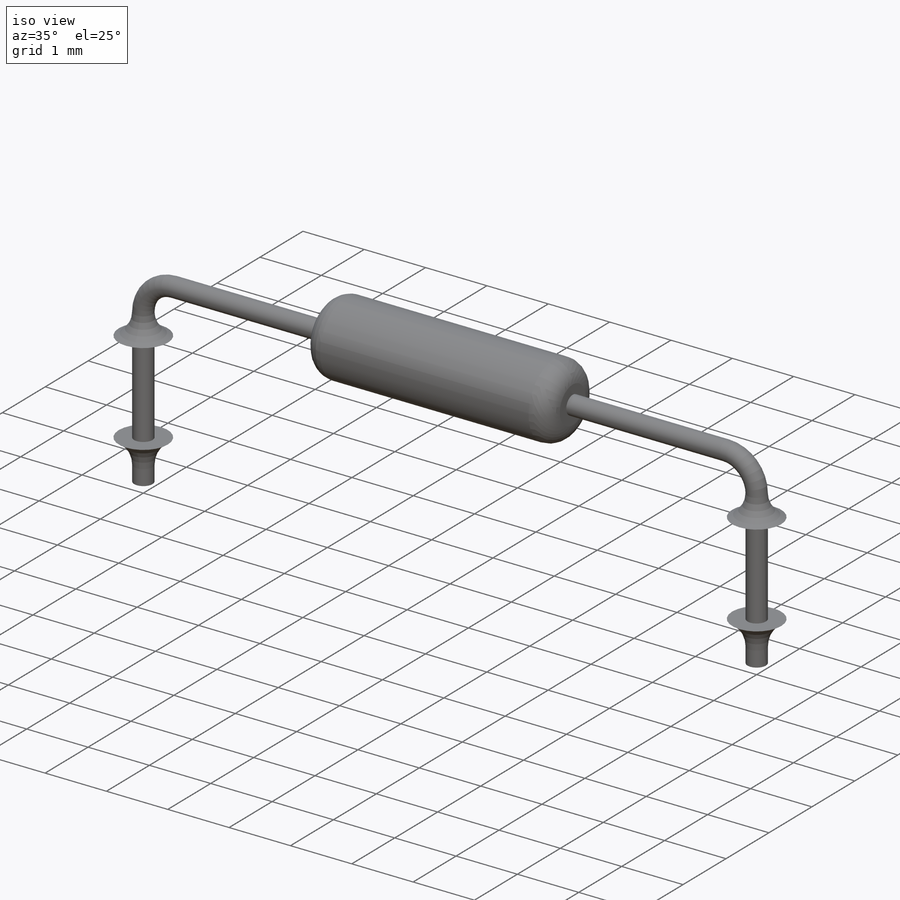
[diagram: iso view]
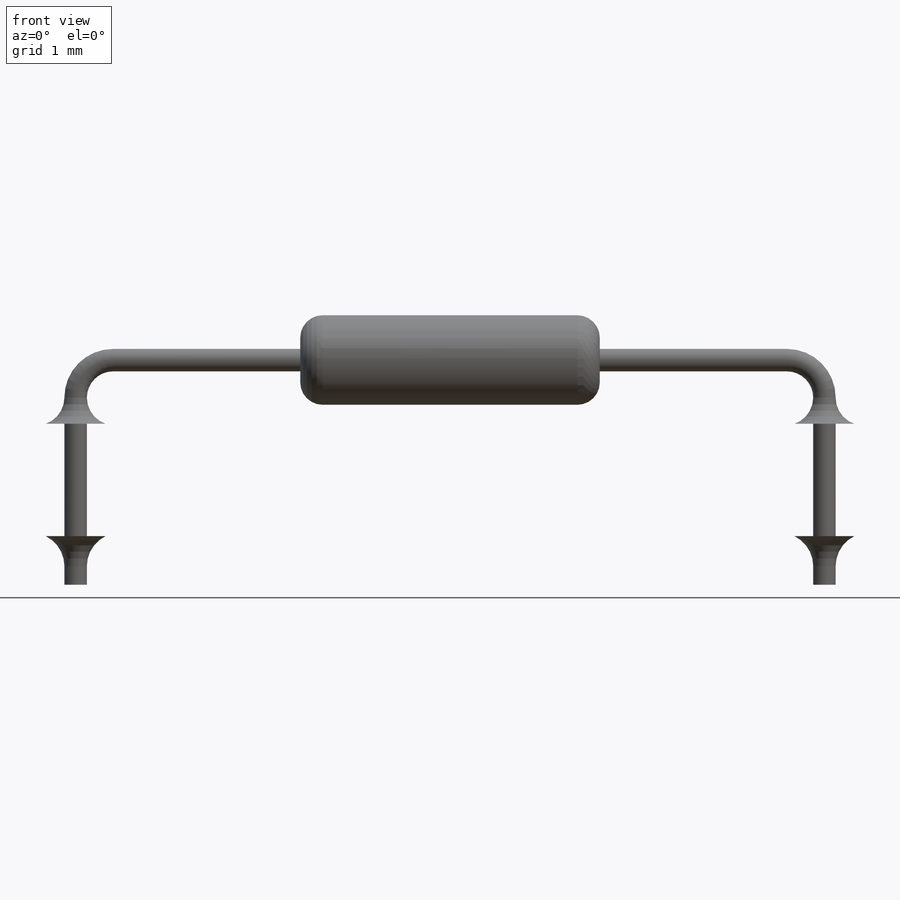
[diagram: front view]
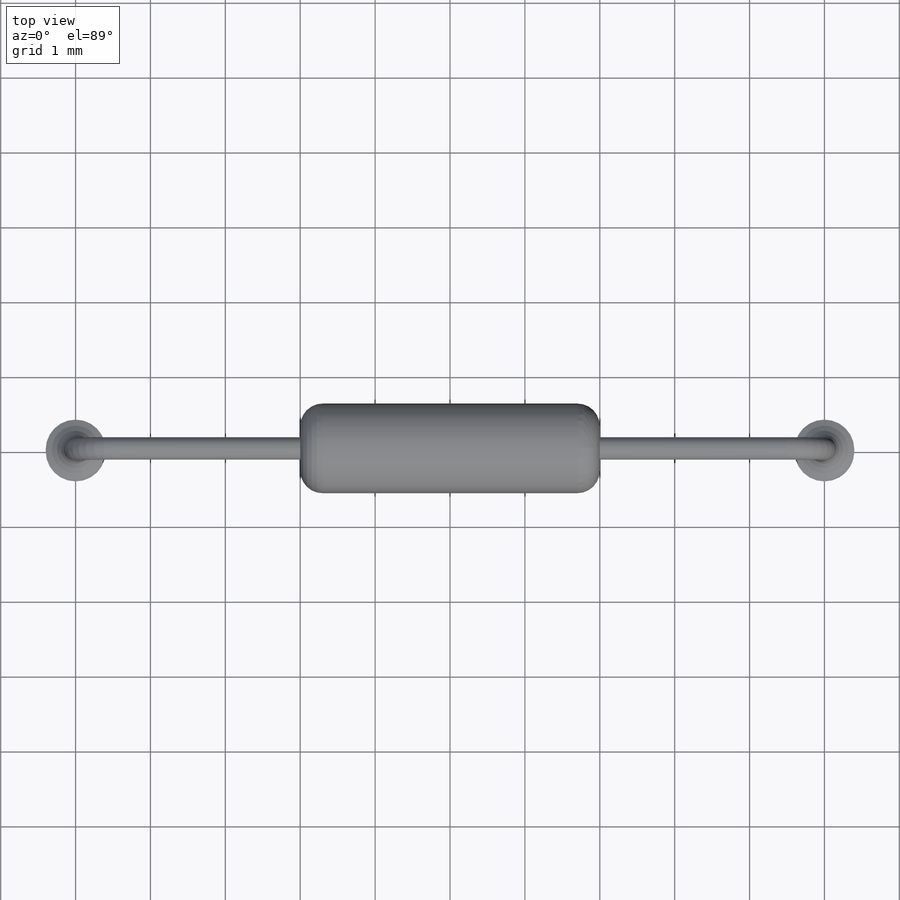
[diagram: top view]
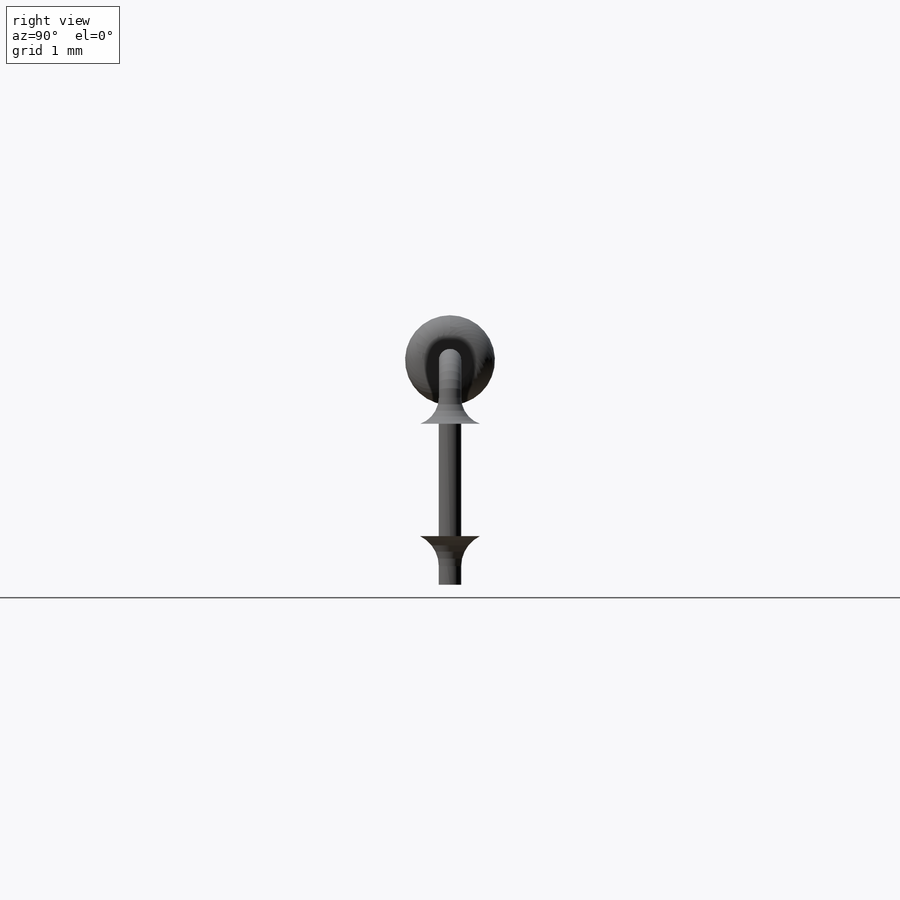
[diagram: right view]
SOLIDWORKS PART (.sldprt)
format: sldprt  version: not decoded by parser v0  size: 464,384 bytes
history: native  units: mm
features: sketch x8, revolve x5, material x1, fillet x1, sweep x1, cut_extrude x1 (+14 scaffold rows collapsed)
feature tree (31):
  scaffold x14  (default folders/planes/origin — collapsed)
  material  "Material <not specified>"
  sketch  "Sketch1"  dims[c1.D1=1.75mm c1.D2=3.5mm c1.D3=0.5mm c1.D4=0.25mm c2.D2=0.35mm c2.D3=3.5mm]
  revolve  "Base-Revolve"  Angle=360deg
  fillet  "Fillet1"  Radius=0.1mm
  sketch  "Sketch2"  dims[D1=1.1mm D2=0.55mm D3=0.5mm]
  revolve  "Boss-Revolve1"  Angle=360deg
  sketch  "Sketch3"  dims[D1=0.3mm D2=7.0mm]
  sketch  "Sketch4"  dims[D4=0.5mm D1=4.5mm D2=10.0mm D3=7.0mm]
  sweep  "Boss-Sweep1"
  sketch  "Sketch5"  dims[D4=0.3mm D5=0.3mm D1=2.0mm D2=2.0mm D3=0.6mm D6=0.045mm]
  revolve  "Boss-Revolve2"  Angle=360deg
  sketch  "Sketch6"  dims[D1=3.0mm D2=5.0mm D3=12.0mm D4=6.0mm D5=1.5mm D6=0.85mm]
  cut_extrude  "Cut-Extrude1"  Depth=10mm
  sketch  "Sketch7"  dims[c1.D1=0.4mm c1.D2=0.4mm c2.D1=0.25mm c2.D3=0.5mm]
  revolve  "Revolve1"  Angle=360deg
  sketch  "Sketch8"  dims[D1=0.25mm D2=0.4mm]
  revolve  "Revolve2"  Angle=360deg
decode coverage: 15 of 16 modeling features carry decoded parameters
note: suppression state not decoded; provenance and decode notes live in map.json
